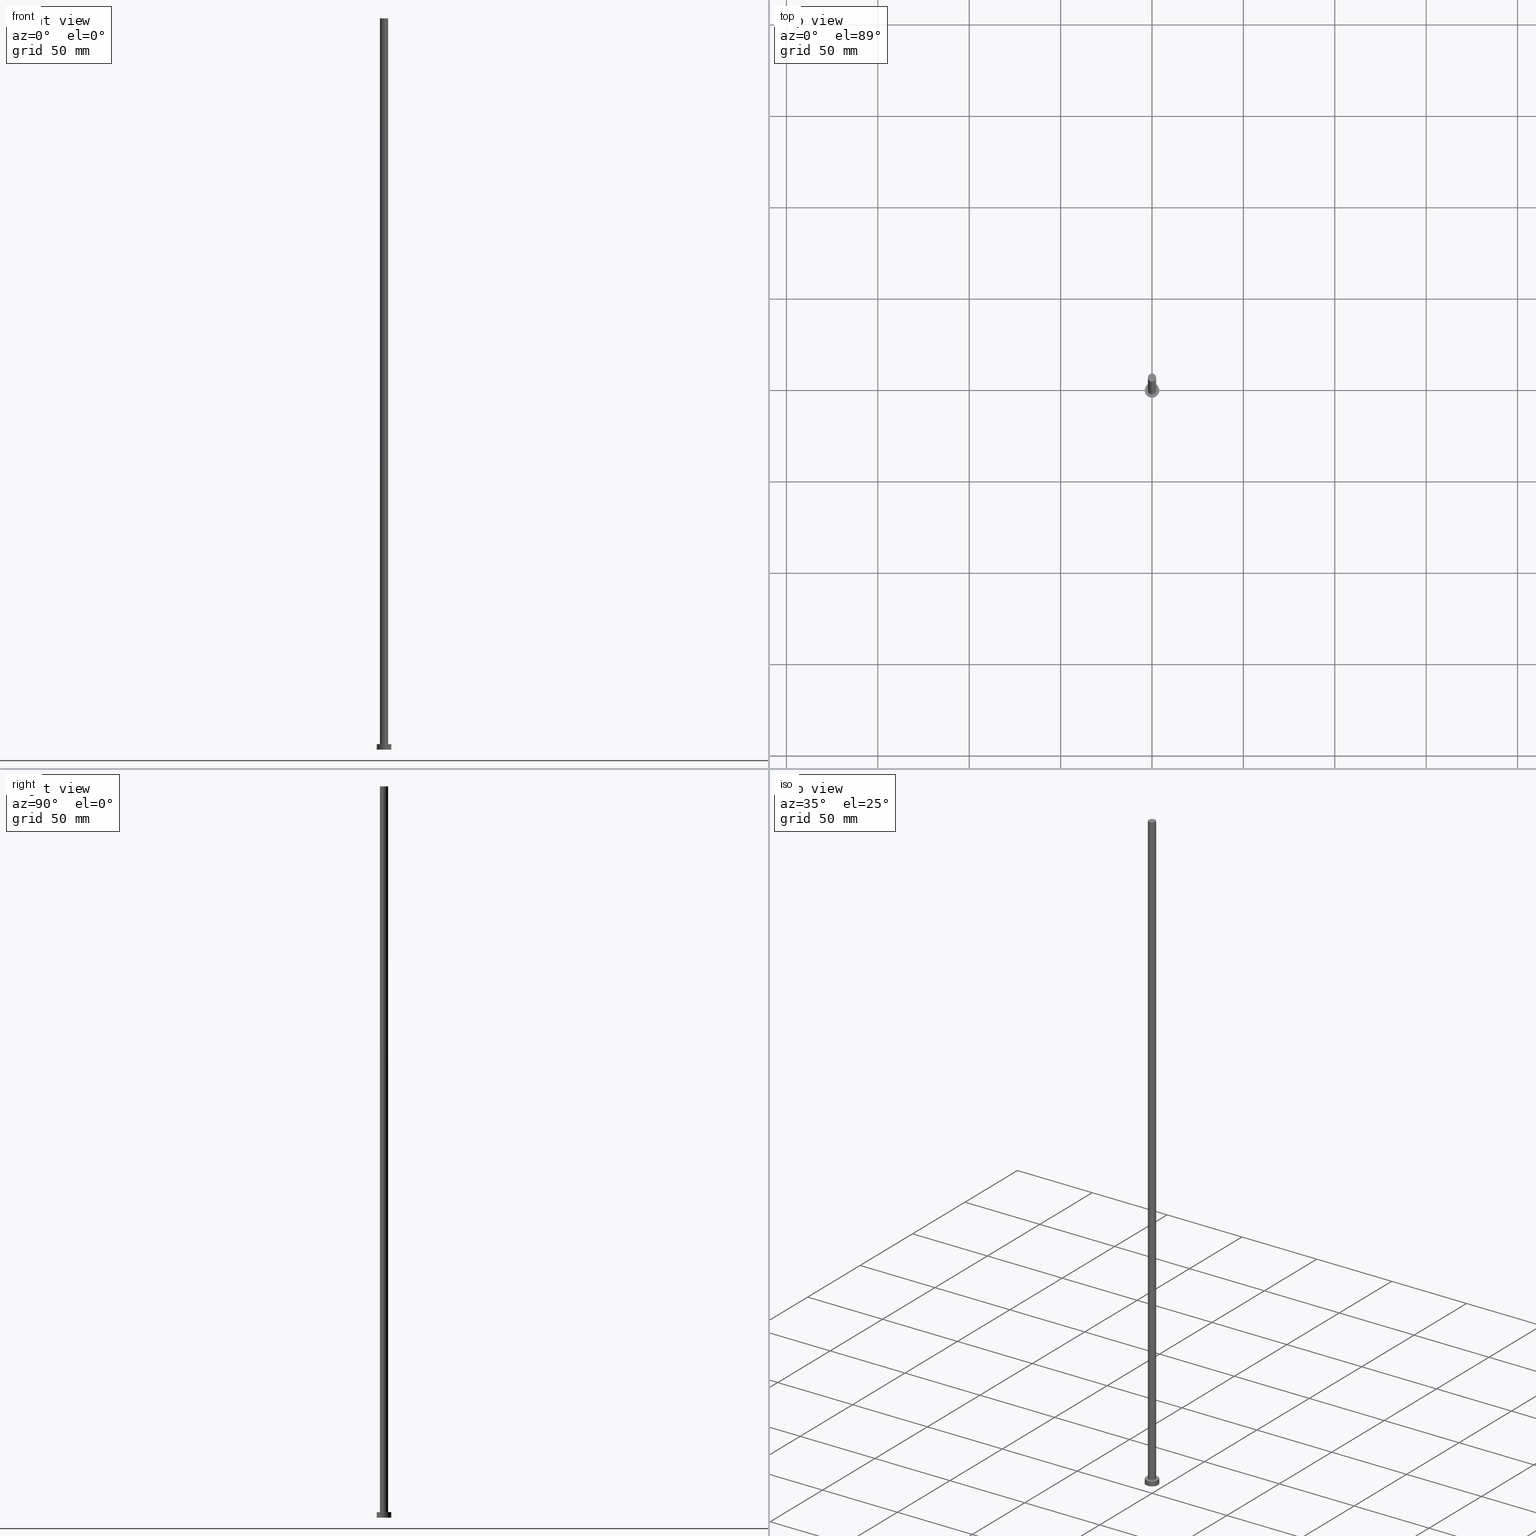
[diagram: canonical four-view strip — front | top / right | iso, engineering-drawing reading convention]
A machine part, canonical four-view strip (front | top / right | iso — engineering-drawing reading convention). The complete STEP part file that produces these views, byte-faithful:
ISO-10303-21;
HEADER;
FILE_DESCRIPTION (( 'STEP AP203' ),
    '1' );
FILE_NAME ('e10c.STEP',
    '2023-02-13T15:51:49',
    ( '' ),
    ( '' ),
    'SwSTEP 2.0',
    'SolidWorks 2019',
    '' );
FILE_SCHEMA (( 'CONFIG_CONTROL_DESIGN' ));
ENDSEC;

DATA;
#1 = AXIS2_PLACEMENT_3D ( 'NONE', #81, #54, #169 ) ;
#2 = ADVANCED_FACE ( 'NONE', ( #175 ), #115, .T. ) ;
#3 = FACE_OUTER_BOUND ( 'NONE', #27, .T. ) ;
#4 = DATE_AND_TIME ( #226, #166 ) ;
#5 = ORIENTED_EDGE ( 'NONE', *, *, #14, .F. ) ;
#6 = DIRECTION ( 'NONE',  ( -1.000000000000000000, 0.000000000000000000, 0.000000000000000000 ) ) ;
#7 = CC_DESIGN_DATE_AND_TIME_ASSIGNMENT ( #114, #120, ( #154 ) ) ;
#8 = APPROVAL_PERSON_ORGANIZATION ( #156, #198, #86 ) ;
#9 = EDGE_LOOP ( 'NONE', ( #5, #50 ) ) ;
#10 = DIRECTION ( 'NONE',  ( -1.000000000000000000, 0.000000000000000000, 0.000000000000000000 ) ) ;
#11 = CALENDAR_DATE ( 2023, 13, 2 ) ;
#12 = ORIENTED_EDGE ( 'NONE', *, *, #149, .T. ) ;
#13 = APPROVAL_DATE_TIME ( #71, #128 ) ;
#14 = EDGE_CURVE ( 'NONE', #211, #113, #41, .T. ) ;
#15 = DATE_AND_TIME ( #35, #181 ) ;
#16 = LINE ( 'NONE', #90, #196 ) ;
#17 = PERSON_AND_ORGANIZATION_ROLE ( 'classification_officer' ) ;
#18 = AXIS2_PLACEMENT_3D ( 'NONE', #146, #101, #204 ) ;
#19 = APPROVAL_PERSON_ORGANIZATION ( #176, #63, #76 ) ;
#20 = CIRCLE ( 'NONE', #32, 4.000000000000000000 ) ;
#21 = ORGANIZATION ( 'NEUR�EN�', 'NEUR�EN�', '' ) ;
#22 = DIRECTION ( 'NONE',  ( 0.000000000000000000, 0.000000000000000000, 1.000000000000000000 ) ) ;
#23 = APPLICATION_PROTOCOL_DEFINITION ( 'international standard', 'config_control_design', 1994, #55 ) ;
#24 = ORIENTED_EDGE ( 'NONE', *, *, #36, .F. ) ;
#25 = CARTESIAN_POINT ( 'NONE',  ( 0.000000000000000000, 0.000000000000000000, 3.000000000000000000 ) ) ;
#26 =( NAMED_UNIT ( * ) PLANE_ANGLE_UNIT ( ) SI_UNIT ( $, .RADIAN. ) );
#27 = EDGE_LOOP ( 'NONE', ( #139, #188, #118, #183 ) ) ;
#28 = CARTESIAN_POINT ( 'NONE',  ( 0.000000000000000000, 0.000000000000000000, 0.000000000000000000 ) ) ;
#29 = APPLICATION_CONTEXT ( 'configuration controlled 3d designs of mechanical parts and assemblies' ) ;
#30 = DATE_TIME_ROLE ( 'classification_date' ) ;
#31 = VERTEX_POINT ( 'NONE', #161 ) ;
#32 = AXIS2_PLACEMENT_3D ( 'NONE', #72, #236, #53 ) ;
#33 = COORDINATED_UNIVERSAL_TIME_OFFSET ( 1, 0, .AHEAD. ) ;
#34 = DIRECTION ( 'NONE',  ( -0.000000000000000000, -0.000000000000000000, -1.000000000000000000 ) ) ;
#35 = CALENDAR_DATE ( 2023, 13, 2 ) ;
#36 = EDGE_CURVE ( 'NONE', #31, #52, #233, .T. ) ;
#37 = AXIS2_PLACEMENT_3D ( 'NONE', #59, #203, #239 ) ;
#38 = CC_DESIGN_PERSON_AND_ORGANIZATION_ASSIGNMENT ( #108, #187, ( #62 ) ) ;
#39 = CARTESIAN_POINT ( 'NONE',  ( 0.000000000000000000, 0.000000000000000000, 0.000000000000000000 ) ) ;
#40 = EDGE_CURVE ( 'NONE', #129, #186, #20, .T. ) ;
#41 = CIRCLE ( 'NONE', #56, 2.250000000000000000 ) ;
#42 = VERTEX_POINT ( 'NONE', #177 ) ;
#43 = DIRECTION ( 'NONE',  ( -0.000000000000000000, -0.000000000000000000, -1.000000000000000000 ) ) ;
#44 = CARTESIAN_POINT ( 'NONE',  ( 4.000000000000000000, 4.898587196589412829E-16, 0.000000000000000000 ) ) ;
#45 = CIRCLE ( 'NONE', #58, 2.250000000000000000 ) ;
#46 = DIRECTION ( 'NONE',  ( -0.000000000000000000, -0.000000000000000000, -1.000000000000000000 ) ) ;
#47 = FACE_OUTER_BOUND ( 'NONE', #48, .T. ) ;
#48 = EDGE_LOOP ( 'NONE', ( #249, #82, #104, #170 ) ) ;
#49 =( NAMED_UNIT ( * ) SI_UNIT ( $, .STERADIAN. ) SOLID_ANGLE_UNIT ( ) );
#50 = ORIENTED_EDGE ( 'NONE', *, *, #95, .F. ) ;
#51 = PERSON_AND_ORGANIZATION_ROLE ( 'creator' ) ;
#52 = VERTEX_POINT ( 'NONE', #75 ) ;
#53 = DIRECTION ( 'NONE',  ( 1.000000000000000000, 0.000000000000000000, 0.000000000000000000 ) ) ;
#54 = DIRECTION ( 'NONE',  ( 0.000000000000000000, 0.000000000000000000, 1.000000000000000000 ) ) ;
#55 = APPLICATION_CONTEXT ( 'configuration controlled 3d designs of mechanical parts and assemblies' ) ;
#56 = AXIS2_PLACEMENT_3D ( 'NONE', #164, #250, #70 ) ;
#57 = CARTESIAN_POINT ( 'NONE',  ( 2.250000000000000000, 2.755455298081544285E-16, 3.000000000000000000 ) ) ;
#58 = AXIS2_PLACEMENT_3D ( 'NONE', #212, #191, #110 ) ;
#59 = CARTESIAN_POINT ( 'NONE',  ( 0.000000000000000000, 0.000000000000000000, 3.000000000000000000 ) ) ;
#60 = CC_DESIGN_APPROVAL ( #63, ( #153 ) ) ;
#61 = DIRECTION ( 'NONE',  ( 0.000000000000000000, 0.000000000000000000, 1.000000000000000000 ) ) ;
#62 = PRODUCT ( 'e10c', 'e10c', '', ( #88 ) ) ;
#63 = APPROVAL ( #238, 'NEUR�EN�' ) ;
#64 = ORIENTED_EDGE ( 'NONE', *, *, #36, .T. ) ;
#65 = APPROVAL_DATE_TIME ( #4, #198 ) ;
#66 = CC_DESIGN_SECURITY_CLASSIFICATION ( #234, ( #153 ) ) ;
#67 = CYLINDRICAL_SURFACE ( 'NONE', #205, 4.000000000000000000 ) ;
#68 = CYLINDRICAL_SURFACE ( 'NONE', #79, 2.250000000000000000 ) ;
#69 = ADVANCED_FACE ( 'NONE', ( #47 ), #135, .T. ) ;
#70 = DIRECTION ( 'NONE',  ( 1.000000000000000000, 0.000000000000000000, 0.000000000000000000 ) ) ;
#71 = DATE_AND_TIME ( #11, #160 ) ;
#72 = CARTESIAN_POINT ( 'NONE',  ( 0.000000000000000000, 0.000000000000000000, 3.000000000000000000 ) ) ;
#73 = MANIFOLD_SOLID_BREP ( 'P�idat vysunut�m3', #252 ) ;
#74 = CC_DESIGN_PERSON_AND_ORGANIZATION_ASSIGNMENT ( #194, #17, ( #234 ) ) ;
#75 = CARTESIAN_POINT ( 'NONE',  ( 2.250000000000000000, 2.755455298081544285E-16, 400.0000000000000000 ) ) ;
#76 = APPROVAL_ROLE ( '' ) ;
#77 = DIRECTION ( 'NONE',  ( -1.000000000000000000, 0.000000000000000000, 0.000000000000000000 ) ) ;
#78 = PLANE ( 'NONE',  #37 ) ;
#79 = AXIS2_PLACEMENT_3D ( 'NONE', #136, #133, #85 ) ;
#80 = PERSON ( 'NEUR�EN�', 'NEUR�EN�', 'NEUR�EN�', ('NEUR�EN�'), ('NEUR�EN�'), ('NEUR�EN�') ) ;
#81 = CARTESIAN_POINT ( 'NONE',  ( 0.000000000000000000, 0.000000000000000000, 400.0000000000000000 ) ) ;
#82 = ORIENTED_EDGE ( 'NONE', *, *, #255, .T. ) ;
#83 = DIRECTION ( 'NONE',  ( 1.000000000000000000, 0.000000000000000000, 0.000000000000000000 ) ) ;
#84 = CC_DESIGN_APPROVAL ( #198, ( #154 ) ) ;
#85 = DIRECTION ( 'NONE',  ( -1.000000000000000000, 0.000000000000000000, 0.000000000000000000 ) ) ;
#86 = APPROVAL_ROLE ( '' ) ;
#87 = AXIS2_PLACEMENT_3D ( 'NONE', #155, #22, #224 ) ;
#88 = MECHANICAL_CONTEXT ( 'NONE', #55, 'mechanical' ) ;
#89 = ORIENTED_EDGE ( 'NONE', *, *, #40, .T. ) ;
#90 = CARTESIAN_POINT ( 'NONE',  ( -2.250000000000000000, 0.000000000000000000, 400.0000000000000000 ) ) ;
#91 = EDGE_LOOP ( 'NONE', ( #94, #172 ) ) ;
#92 = COORDINATED_UNIVERSAL_TIME_OFFSET ( 1, 0, .AHEAD. ) ;
#93 = AXIS2_PLACEMENT_3D ( 'NONE', #39, #124, #102 ) ;
#94 = ORIENTED_EDGE ( 'NONE', *, *, #228, .F. ) ;
#95 = EDGE_CURVE ( 'NONE', #113, #211, #227, .T. ) ;
#96 = DIRECTION ( 'NONE',  ( 0.000000000000000000, 0.000000000000000000, 1.000000000000000000 ) ) ;
#97 = SECURITY_CLASSIFICATION_LEVEL ( 'unclassified' ) ;
#98 = ADVANCED_FACE ( 'NONE', ( #221 ), #253, .F. ) ;
#99 = CALENDAR_DATE ( 2023, 13, 2 ) ;
#100 = ADVANCED_FACE ( 'NONE', ( #199 ), #237, .T. ) ;
#101 = DIRECTION ( 'NONE',  ( 0.000000000000000000, 0.000000000000000000, 1.000000000000000000 ) ) ;
#102 = DIRECTION ( 'NONE',  ( 1.000000000000000000, 0.000000000000000000, -0.000000000000000000 ) ) ;
#103 = AXIS2_PLACEMENT_3D ( 'NONE', #28, #61, #158 ) ;
#104 = ORIENTED_EDGE ( 'NONE', *, *, #95, .T. ) ;
#105 = EDGE_LOOP ( 'NONE', ( #64, #159 ) ) ;
#106 = FACE_OUTER_BOUND ( 'NONE', #137, .T. ) ;
#107 = EDGE_LOOP ( 'NONE', ( #89, #132 ) ) ;
#108 = PERSON_AND_ORGANIZATION ( #80, #21 ) ;
#109 = LOCAL_TIME ( 16, 51, 49.00000000000000000, #33 ) ;
#110 = DIRECTION ( 'NONE',  ( 1.000000000000000000, 0.000000000000000000, 0.000000000000000000 ) ) ;
#111 = ADVANCED_FACE ( 'NONE', ( #220, #201 ), #78, .T. ) ;
#112 = LINE ( 'NONE', #130, #243 ) ;
#113 = VERTEX_POINT ( 'NONE', #57 ) ;
#114 = DATE_AND_TIME ( #167, #254 ) ;
#115 = CYLINDRICAL_SURFACE ( 'NONE', #240, 4.000000000000000000 ) ;
#116 = DIRECTION ( 'NONE',  ( 1.000000000000000000, 0.000000000000000000, 0.000000000000000000 ) ) ;
#117 = CIRCLE ( 'NONE', #208, 4.000000000000000000 ) ;
#118 = ORIENTED_EDGE ( 'NONE', *, *, #134, .T. ) ;
#119 = LINE ( 'NONE', #219, #131 ) ;
#120 = DATE_TIME_ROLE ( 'creation_date' ) ;
#121 = CC_DESIGN_PERSON_AND_ORGANIZATION_ASSIGNMENT ( #248, #140, ( #153 ) ) ;
#122 = CARTESIAN_POINT ( 'NONE',  ( -4.000000000000000000, 0.000000000000000000, 3.000000000000000000 ) ) ;
#123 = AXIS2_PLACEMENT_3D ( 'NONE', #218, #96, #116 ) ;
#124 = DIRECTION ( 'NONE',  ( 0.000000000000000000, 0.000000000000000000, 1.000000000000000000 ) ) ;
#125 = CC_DESIGN_PERSON_AND_ORGANIZATION_ASSIGNMENT ( #163, #51, ( #154 ) ) ;
#126 = AXIS2_PLACEMENT_3D ( 'NONE', #223, #147, #77 ) ;
#127 = UNCERTAINTY_MEASURE_WITH_UNIT (LENGTH_MEASURE( 1.000000000000000082E-05 ), #207, 'distance_accuracy_value', 'NONE');
#128 = APPROVAL ( #180, 'NEUR�EN�' ) ;
#129 = VERTEX_POINT ( 'NONE', #122 ) ;
#130 = CARTESIAN_POINT ( 'NONE',  ( 2.250000000000000000, 2.755455298081544285E-16, 400.0000000000000000 ) ) ;
#131 = VECTOR ( 'NONE', #34, 1000.000000000000000 ) ;
#132 = ORIENTED_EDGE ( 'NONE', *, *, #213, .T. ) ;
#133 = DIRECTION ( 'NONE',  ( -0.000000000000000000, -0.000000000000000000, -1.000000000000000000 ) ) ;
#134 = EDGE_CURVE ( 'NONE', #162, #42, #117, .T. ) ;
#135 = CYLINDRICAL_SURFACE ( 'NONE', #126, 2.250000000000000000 ) ;
#136 = CARTESIAN_POINT ( 'NONE',  ( 0.000000000000000000, 0.000000000000000000, 400.0000000000000000 ) ) ;
#137 = EDGE_LOOP ( 'NONE', ( #197, #24, #12, #173 ) ) ;
#138 = COORDINATED_UNIVERSAL_TIME_OFFSET ( 1, 0, .AHEAD. ) ;
#139 = ORIENTED_EDGE ( 'NONE', *, *, #213, .F. ) ;
#140 = PERSON_AND_ORGANIZATION_ROLE ( 'creator' ) ;
#141 = CC_DESIGN_DATE_AND_TIME_ASSIGNMENT ( #195, #30, ( #234 ) ) ;
#142 = CARTESIAN_POINT ( 'NONE',  ( 0.000000000000000000, 0.000000000000000000, 3.000000000000000000 ) ) ;
#143 = EDGE_CURVE ( 'NONE', #129, #42, #119, .T. ) ;
#144 =( GEOMETRIC_REPRESENTATION_CONTEXT ( 3 ) GLOBAL_UNCERTAINTY_ASSIGNED_CONTEXT ( ( #127 ) ) GLOBAL_UNIT_ASSIGNED_CONTEXT ( ( #207, #26, #49 ) ) REPRESENTATION_CONTEXT ( 'NONE', 'WORKASPACE' ) );
#145 = DIRECTION ( 'NONE',  ( 1.000000000000000000, 0.000000000000000000, 0.000000000000000000 ) ) ;
#146 = CARTESIAN_POINT ( 'NONE',  ( 0.000000000000000000, 0.000000000000000000, 3.000000000000000000 ) ) ;
#147 = DIRECTION ( 'NONE',  ( -0.000000000000000000, -0.000000000000000000, -1.000000000000000000 ) ) ;
#148 = CARTESIAN_POINT ( 'NONE',  ( 0.000000000000000000, 0.000000000000000000, 0.000000000000000000 ) ) ;
#149 = EDGE_CURVE ( 'NONE', #31, #211, #16, .T. ) ;
#150 = ADVANCED_BREP_SHAPE_REPRESENTATION ( 'e10c', ( #73, #87 ), #144 ) ;
#151 = DIRECTION ( 'NONE',  ( 0.000000000000000000, 0.000000000000000000, 1.000000000000000000 ) ) ;
#152 = ADVANCED_FACE ( 'NONE', ( #106 ), #68, .T. ) ;
#153 = PRODUCT_DEFINITION_FORMATION_WITH_SPECIFIED_SOURCE ( 'LIBOVOLN�', '', #62, .NOT_KNOWN. ) ;
#154 = PRODUCT_DEFINITION ( 'NEZN�M�', '', #153, #182 ) ;
#155 = CARTESIAN_POINT ( 'NONE',  ( 0.000000000000000000, 0.000000000000000000, 0.000000000000000000 ) ) ;
#156 = PERSON_AND_ORGANIZATION ( #80, #21 ) ;
#157 = APPROVAL_STATUS ( 'not_yet_approved' ) ;
#158 = DIRECTION ( 'NONE',  ( 1.000000000000000000, 0.000000000000000000, 0.000000000000000000 ) ) ;
#159 = ORIENTED_EDGE ( 'NONE', *, *, #209, .T. ) ;
#160 = LOCAL_TIME ( 16, 51, 49.00000000000000000, #92 ) ;
#161 = CARTESIAN_POINT ( 'NONE',  ( -2.250000000000000000, 0.000000000000000000, 400.0000000000000000 ) ) ;
#162 = VERTEX_POINT ( 'NONE', #44 ) ;
#163 = PERSON_AND_ORGANIZATION ( #80, #21 ) ;
#164 = CARTESIAN_POINT ( 'NONE',  ( 0.000000000000000000, 0.000000000000000000, 3.000000000000000000 ) ) ;
#165 = PERSON_AND_ORGANIZATION_ROLE ( 'design_supplier' ) ;
#166 = LOCAL_TIME ( 16, 51, 49.00000000000000000, #244 ) ;
#167 = CALENDAR_DATE ( 2023, 13, 2 ) ;
#168 = CC_DESIGN_PERSON_AND_ORGANIZATION_ASSIGNMENT ( #217, #165, ( #153 ) ) ;
#169 = DIRECTION ( 'NONE',  ( 1.000000000000000000, 0.000000000000000000, -0.000000000000000000 ) ) ;
#170 = ORIENTED_EDGE ( 'NONE', *, *, #149, .F. ) ;
#171 = LINE ( 'NONE', #232, #222 ) ;
#172 = ORIENTED_EDGE ( 'NONE', *, *, #134, .F. ) ;
#173 = ORIENTED_EDGE ( 'NONE', *, *, #14, .T. ) ;
#174 = COORDINATED_UNIVERSAL_TIME_OFFSET ( 1, 0, .AHEAD. ) ;
#175 = FACE_OUTER_BOUND ( 'NONE', #242, .T. ) ;
#176 = PERSON_AND_ORGANIZATION ( #80, #21 ) ;
#177 = CARTESIAN_POINT ( 'NONE',  ( -4.000000000000000000, 0.000000000000000000, 0.000000000000000000 ) ) ;
#178 = APPROVAL_ROLE ( '' ) ;
#179 = PRODUCT_RELATED_PRODUCT_CATEGORY ( 'detail', '', ( #62 ) ) ;
#180 = APPROVAL_STATUS ( 'not_yet_approved' ) ;
#181 = LOCAL_TIME ( 16, 51, 49.00000000000000000, #174 ) ;
#182 = DESIGN_CONTEXT ( 'detailed design', #29, 'design' ) ;
#183 = ORIENTED_EDGE ( 'NONE', *, *, #143, .F. ) ;
#184 = CARTESIAN_POINT ( 'NONE',  ( 4.000000000000000000, 4.898587196589412829E-16, 3.000000000000000000 ) ) ;
#185 = CIRCLE ( 'NONE', #192, 4.000000000000000000 ) ;
#186 = VERTEX_POINT ( 'NONE', #184 ) ;
#187 = PERSON_AND_ORGANIZATION_ROLE ( 'design_owner' ) ;
#188 = ORIENTED_EDGE ( 'NONE', *, *, #245, .T. ) ;
#189 = DIRECTION ( 'NONE',  ( 0.000000000000000000, 0.000000000000000000, 1.000000000000000000 ) ) ;
#190 = APPLICATION_PROTOCOL_DEFINITION ( 'international standard', 'config_control_design', 1994, #29 ) ;
#191 = DIRECTION ( 'NONE',  ( 0.000000000000000000, 0.000000000000000000, 1.000000000000000000 ) ) ;
#192 = AXIS2_PLACEMENT_3D ( 'NONE', #25, #189, #83 ) ;
#193 = DIRECTION ( 'NONE',  ( -0.000000000000000000, -0.000000000000000000, -1.000000000000000000 ) ) ;
#194 = PERSON_AND_ORGANIZATION ( #80, #21 ) ;
#195 = DATE_AND_TIME ( #99, #109 ) ;
#196 = VECTOR ( 'NONE', #229, 1000.000000000000000 ) ;
#197 = ORIENTED_EDGE ( 'NONE', *, *, #255, .F. ) ;
#198 = APPROVAL ( #157, 'NEUR�EN�' ) ;
#199 = FACE_OUTER_BOUND ( 'NONE', #105, .T. ) ;
#200 = APPROVAL_DATE_TIME ( #15, #63 ) ;
#201 = FACE_OUTER_BOUND ( 'NONE', #107, .T. ) ;
#202 = ADVANCED_FACE ( 'NONE', ( #3 ), #67, .T. ) ;
#203 = DIRECTION ( 'NONE',  ( 0.000000000000000000, 0.000000000000000000, 1.000000000000000000 ) ) ;
#204 = DIRECTION ( 'NONE',  ( 1.000000000000000000, 0.000000000000000000, 0.000000000000000000 ) ) ;
#205 = AXIS2_PLACEMENT_3D ( 'NONE', #214, #215, #6 ) ;
#206 = ORIENTED_EDGE ( 'NONE', *, *, #143, .T. ) ;
#207 =( LENGTH_UNIT ( ) NAMED_UNIT ( * ) SI_UNIT ( .MILLI., .METRE. ) );
#208 = AXIS2_PLACEMENT_3D ( 'NONE', #148, #151, #145 ) ;
#209 = EDGE_CURVE ( 'NONE', #52, #31, #45, .T. ) ;
#210 = CIRCLE ( 'NONE', #103, 4.000000000000000000 ) ;
#211 = VERTEX_POINT ( 'NONE', #230 ) ;
#212 = CARTESIAN_POINT ( 'NONE',  ( 0.000000000000000000, 0.000000000000000000, 400.0000000000000000 ) ) ;
#213 = EDGE_CURVE ( 'NONE', #186, #129, #185, .T. ) ;
#214 = CARTESIAN_POINT ( 'NONE',  ( 0.000000000000000000, 0.000000000000000000, 3.000000000000000000 ) ) ;
#215 = DIRECTION ( 'NONE',  ( -0.000000000000000000, -0.000000000000000000, -1.000000000000000000 ) ) ;
#216 = PERSON_AND_ORGANIZATION ( #80, #21 ) ;
#217 = PERSON_AND_ORGANIZATION ( #80, #21 ) ;
#218 = CARTESIAN_POINT ( 'NONE',  ( 0.000000000000000000, 0.000000000000000000, 400.0000000000000000 ) ) ;
#219 = CARTESIAN_POINT ( 'NONE',  ( -4.000000000000000000, 0.000000000000000000, 3.000000000000000000 ) ) ;
#220 = FACE_BOUND ( 'NONE', #9, .T. ) ;
#221 = FACE_OUTER_BOUND ( 'NONE', #91, .T. ) ;
#222 = VECTOR ( 'NONE', #46, 1000.000000000000000 ) ;
#223 = CARTESIAN_POINT ( 'NONE',  ( 0.000000000000000000, 0.000000000000000000, 400.0000000000000000 ) ) ;
#224 = DIRECTION ( 'NONE',  ( 1.000000000000000000, 0.000000000000000000, 0.000000000000000000 ) ) ;
#225 = PRODUCT_DEFINITION_SHAPE ( 'NONE', 'NONE',  #154 ) ;
#226 = CALENDAR_DATE ( 2023, 13, 2 ) ;
#227 = CIRCLE ( 'NONE', #18, 2.250000000000000000 ) ;
#228 = EDGE_CURVE ( 'NONE', #42, #162, #210, .T. ) ;
#229 = DIRECTION ( 'NONE',  ( -0.000000000000000000, -0.000000000000000000, -1.000000000000000000 ) ) ;
#230 = CARTESIAN_POINT ( 'NONE',  ( -2.250000000000000000, 0.000000000000000000, 3.000000000000000000 ) ) ;
#231 = ORIENTED_EDGE ( 'NONE', *, *, #40, .F. ) ;
#232 = CARTESIAN_POINT ( 'NONE',  ( 4.000000000000000000, 4.898587196589412829E-16, 3.000000000000000000 ) ) ;
#233 = CIRCLE ( 'NONE', #123, 2.250000000000000000 ) ;
#234 = SECURITY_CLASSIFICATION ( '', '', #97 ) ;
#235 = ORIENTED_EDGE ( 'NONE', *, *, #245, .F. ) ;
#236 = DIRECTION ( 'NONE',  ( 0.000000000000000000, 0.000000000000000000, 1.000000000000000000 ) ) ;
#237 = PLANE ( 'NONE',  #1 ) ;
#238 = APPROVAL_STATUS ( 'not_yet_approved' ) ;
#239 = DIRECTION ( 'NONE',  ( 1.000000000000000000, 0.000000000000000000, -0.000000000000000000 ) ) ;
#240 = AXIS2_PLACEMENT_3D ( 'NONE', #142, #193, #10 ) ;
#241 = CC_DESIGN_APPROVAL ( #128, ( #234 ) ) ;
#242 = EDGE_LOOP ( 'NONE', ( #235, #231, #206, #247 ) ) ;
#243 = VECTOR ( 'NONE', #43, 1000.000000000000000 ) ;
#244 = COORDINATED_UNIVERSAL_TIME_OFFSET ( 1, 0, .AHEAD. ) ;
#245 = EDGE_CURVE ( 'NONE', #186, #162, #171, .T. ) ;
#246 = APPROVAL_PERSON_ORGANIZATION ( #216, #128, #178 ) ;
#247 = ORIENTED_EDGE ( 'NONE', *, *, #228, .T. ) ;
#248 = PERSON_AND_ORGANIZATION ( #80, #21 ) ;
#249 = ORIENTED_EDGE ( 'NONE', *, *, #209, .F. ) ;
#250 = DIRECTION ( 'NONE',  ( 0.000000000000000000, 0.000000000000000000, 1.000000000000000000 ) ) ;
#251 = SHAPE_DEFINITION_REPRESENTATION ( #225, #150 ) ;
#252 = CLOSED_SHELL ( 'NONE', ( #69, #202, #2, #111, #98, #152, #100 ) ) ;
#253 = PLANE ( 'NONE',  #93 ) ;
#254 = LOCAL_TIME ( 16, 51, 49.00000000000000000, #138 ) ;
#255 = EDGE_CURVE ( 'NONE', #52, #113, #112, .T. ) ;
ENDSEC;
END-ISO-10303-21;
